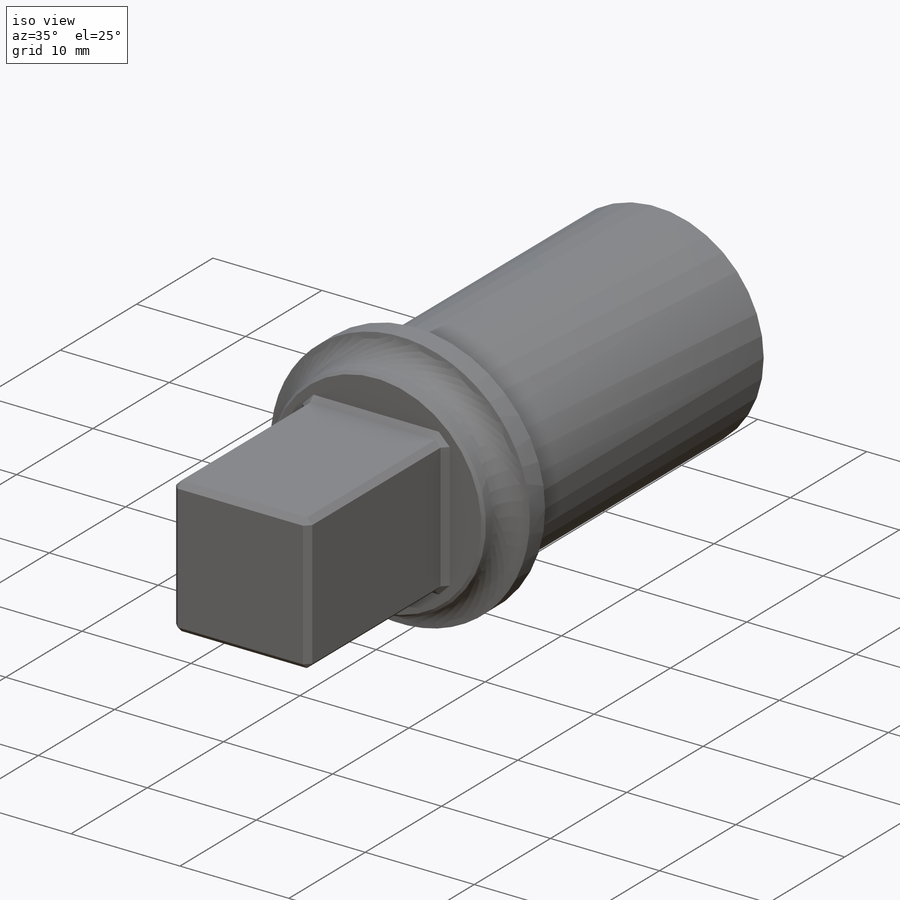
[diagram: iso view]
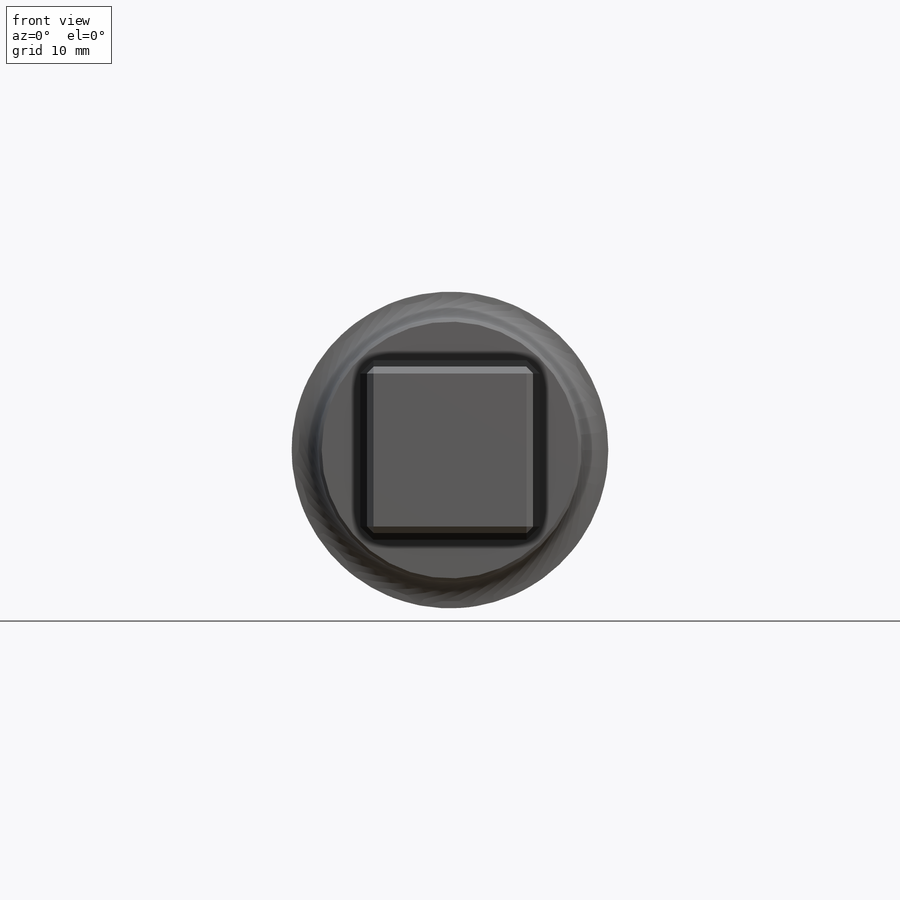
[diagram: front view]
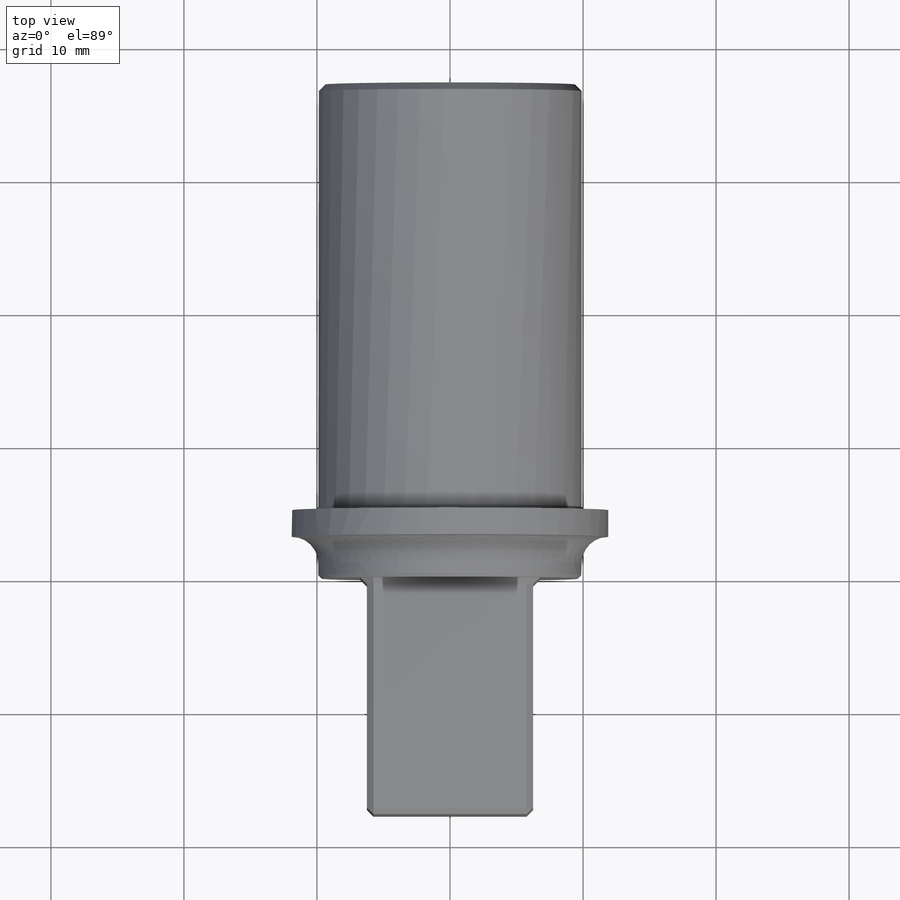
[diagram: top view]
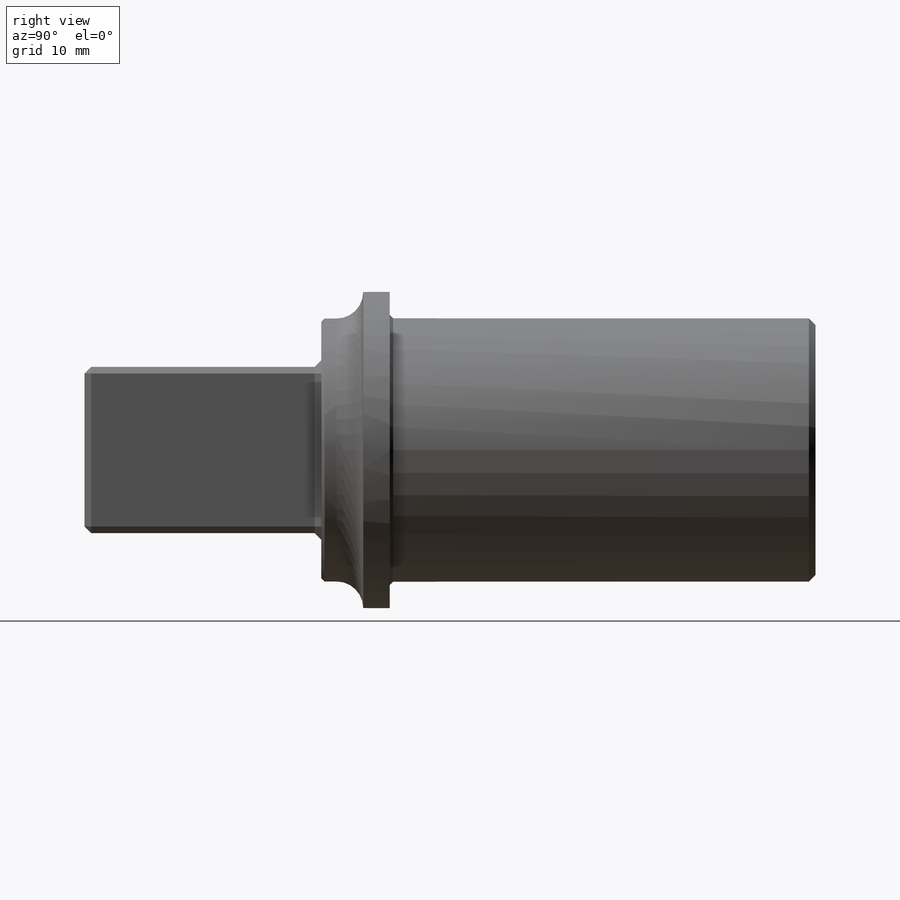
[diagram: right view]
SOLIDWORKS PART (.sldprt)
format: sldprt  version: not decoded by parser v0  size: 428,032 bytes
history: native  units: mm
features: plane x3, sketch x2, chamfer x2, material x1, extrude x1, revolve x1 (+13 scaffold rows collapsed)
feature tree (23):
  scaffold x13  (default folders/planes/origin — collapsed)
  material  "Дуб"
  plane  "Спереди"
  plane  "Сверху"
  plane  "Справа"
  sketch  "Эскиз1"  dims[D1=12.5mm]
  extrude  "Бобышка-Вытянуть1"  Depth=17.8mm
  sketch  "Эскиз3"  dims[c1.D5=4.0mm c1.D1=19.8mm c1.D2=23.8mm c1.D3=5.15mm c1.D4=2.0mm c2.D5=3.15mm c2.D4=2.0mm c2.D6=32.0mm]
  revolve  "Повернуть1"  Angle=360deg
  chamfer  "Фаска1"  Distance=0.5mm Angle=45deg
  chamfer  "Фаска2"  Distance=0.25mm Angle=45deg
decode coverage: 6 of 6 modeling features carry decoded parameters
note: suppression state not decoded; provenance and decode notes live in map.json
